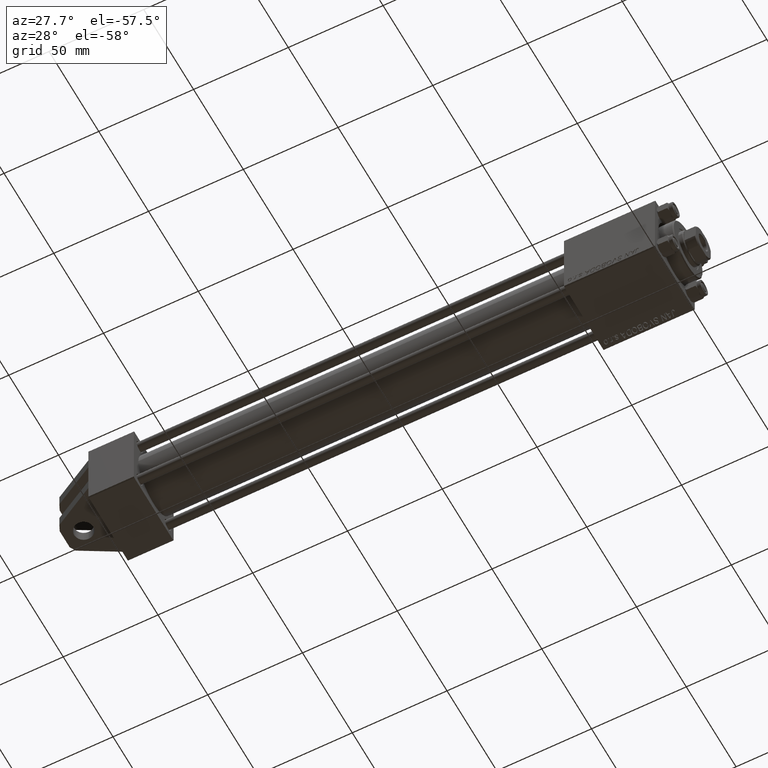
[diagram: clean part render]
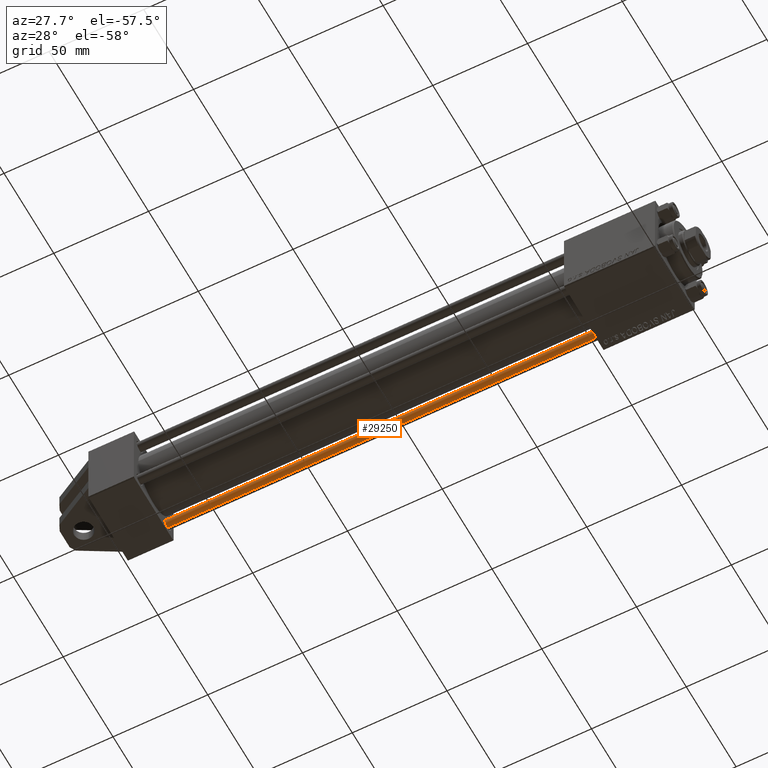
[diagram: same view with one face highlighted and labeled with its STEP entity id]
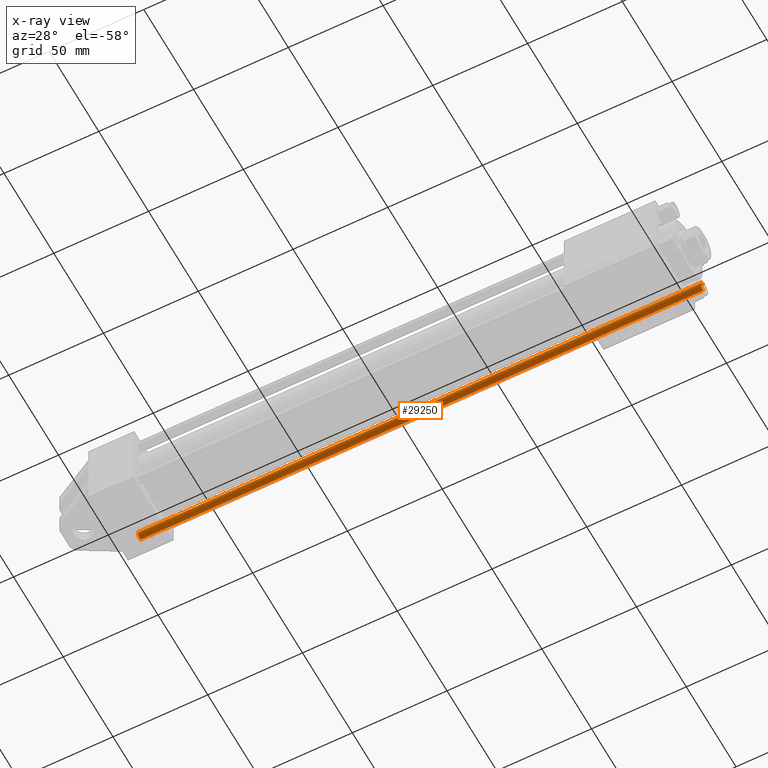
[diagram: x-ray of the same camera — body ghosted, the highlighted face saturated]
A machine part, auxiliary view. The second image highlights one B-rep face of the part: STEP entity #29250.
The next image is the same camera in x-ray: the body ghosted, the highlighted face saturated — about 0% of this face is hidden behind the body in this view.
In plain terms, the highlighted cylindrical surface (edge-blend (fillet) strip) has radius 2.5 mm, axis along (1, -0, -0).
Its self-contained STEP definition (entity closure, byte-faithful):
#81 = AXIS2_PLACEMENT_3D ( 'NONE', #15982, #16236, #24008 ) ;
#444 = VERTEX_POINT ( 'NONE', #29986 ) ;
#3419 = ORIENTED_EDGE ( 'NONE', *, *, #48569, .T. ) ;
#4301 = CARTESIAN_POINT ( 'NONE',  ( 2.500000000000000000, 3.061616997868383141E-16, 0.5000000000000559552 ) ) ;
#4660 = CYLINDRICAL_SURFACE ( 'NONE', #7498, 2.500000000000000000 ) ;
#7193 = CIRCLE ( 'NONE', #14430, 2.500000000000000000 ) ;
#7301 = VERTEX_POINT ( 'NONE', #4301 ) ;
#7498 = AXIS2_PLACEMENT_3D ( 'NONE', #12662, #16429, #40021 ) ;
#8864 = CIRCLE ( 'NONE', #81, 2.500000000000000000 ) ;
#11877 = CARTESIAN_POINT ( 'NONE',  ( 2.500000000000000000, 3.061616997868383141E-16, 298.0000000000000000 ) ) ;
#12662 = CARTESIAN_POINT ( 'NONE',  ( 0.000000000000000000, 0.000000000000000000, 298.0000000000000000 ) ) ;
#14430 = AXIS2_PLACEMENT_3D ( 'NONE', #34535, #46076, #42292 ) ;
#14853 = ORIENTED_EDGE ( 'NONE', *, *, #22205, .T. ) ;
#15207 = VECTOR ( 'NONE', #45778, 1000.000000000000000 ) ;
#15982 = CARTESIAN_POINT ( 'NONE',  ( 0.000000000000000000, 0.000000000000000000, 0.5000000000000559552 ) ) ;
#16236 = DIRECTION ( 'NONE',  ( -0.000000000000000000, -0.000000000000000000, 1.000000000000000000 ) ) ;
#16429 = DIRECTION ( 'NONE',  ( -0.000000000000000000, -0.000000000000000000, -1.000000000000000000 ) ) ;
#16994 = ORIENTED_EDGE ( 'NONE', *, *, #17885, .F. ) ;
#17885 = EDGE_CURVE ( 'NONE', #20042, #7301, #38248, .T. ) ;
#20042 = VERTEX_POINT ( 'NONE', #25539 ) ;
#21438 = DIRECTION ( 'NONE',  ( -0.000000000000000000, -0.000000000000000000, -1.000000000000000000 ) ) ;
#22205 = EDGE_CURVE ( 'NONE', #444, #27112, #44292, .T. ) ;
#24008 = DIRECTION ( 'NONE',  ( 1.000000000000000000, 0.000000000000000000, 0.000000000000000000 ) ) ;
#24453 = FACE_OUTER_BOUND ( 'NONE', #28969, .T. ) ;
#25203 = CARTESIAN_POINT ( 'NONE',  ( -2.500000000000000000, 0.000000000000000000, 298.0000000000000000 ) ) ;
#25539 = CARTESIAN_POINT ( 'NONE',  ( 2.500000000000000000, 3.061616997868383141E-16, 297.5000000000001137 ) ) ;
#26930 = CARTESIAN_POINT ( 'NONE',  ( -2.500000000000000000, 0.000000000000000000, 0.5000000000000559552 ) ) ;
#27112 = VERTEX_POINT ( 'NONE', #26930 ) ;
#28058 = ORIENTED_EDGE ( 'NONE', *, *, #46888, .T. ) ;
#28969 = EDGE_LOOP ( 'NONE', ( #16994, #3419, #14853, #28058 ) ) ;
#29250 = ADVANCED_FACE ( 'NONE', ( #24453 ), #4660, .T. ) ;
#29986 = CARTESIAN_POINT ( 'NONE',  ( -2.500000000000000000, 0.000000000000000000, 297.5000000000001137 ) ) ;
#34535 = CARTESIAN_POINT ( 'NONE',  ( 0.000000000000000000, 0.000000000000000000, 297.5000000000001137 ) ) ;
#38248 = LINE ( 'NONE', #11877, #15207 ) ;
#40021 = DIRECTION ( 'NONE',  ( -1.000000000000000000, 0.000000000000000000, 0.000000000000000000 ) ) ;
#40170 = VECTOR ( 'NONE', #21438, 1000.000000000000000 ) ;
#42292 = DIRECTION ( 'NONE',  ( 1.000000000000000000, 0.000000000000000000, 0.000000000000000000 ) ) ;
#44292 = LINE ( 'NONE', #25203, #40170 ) ;
#45778 = DIRECTION ( 'NONE',  ( -0.000000000000000000, -0.000000000000000000, -1.000000000000000000 ) ) ;
#46076 = DIRECTION ( 'NONE',  ( 0.000000000000000000, 0.000000000000000000, -1.000000000000000000 ) ) ;
#46888 = EDGE_CURVE ( 'NONE', #27112, #7301, #8864, .T. ) ;
#48569 = EDGE_CURVE ( 'NONE', #20042, #444, #7193, .T. ) ;